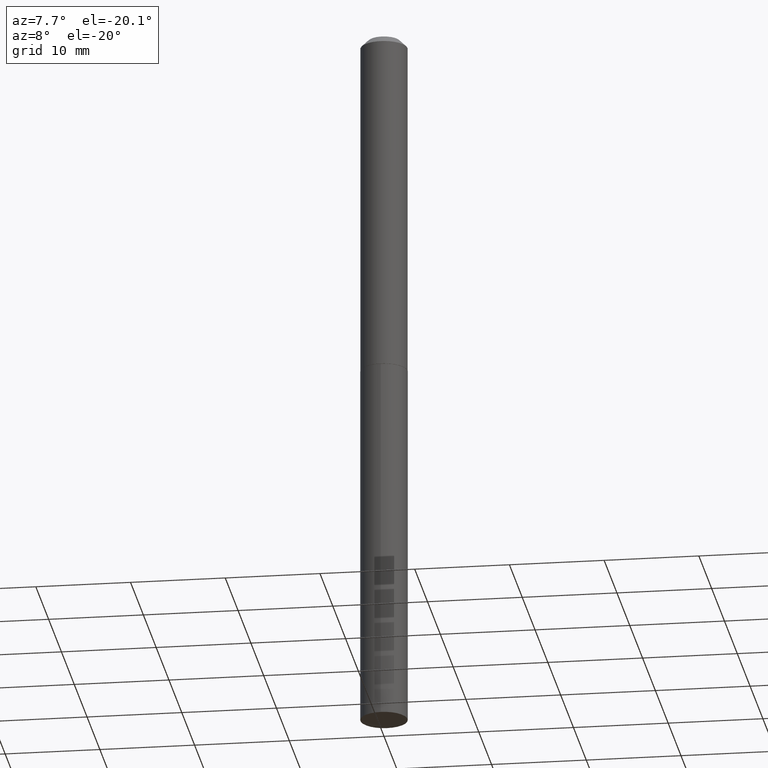
[diagram: clean part render]
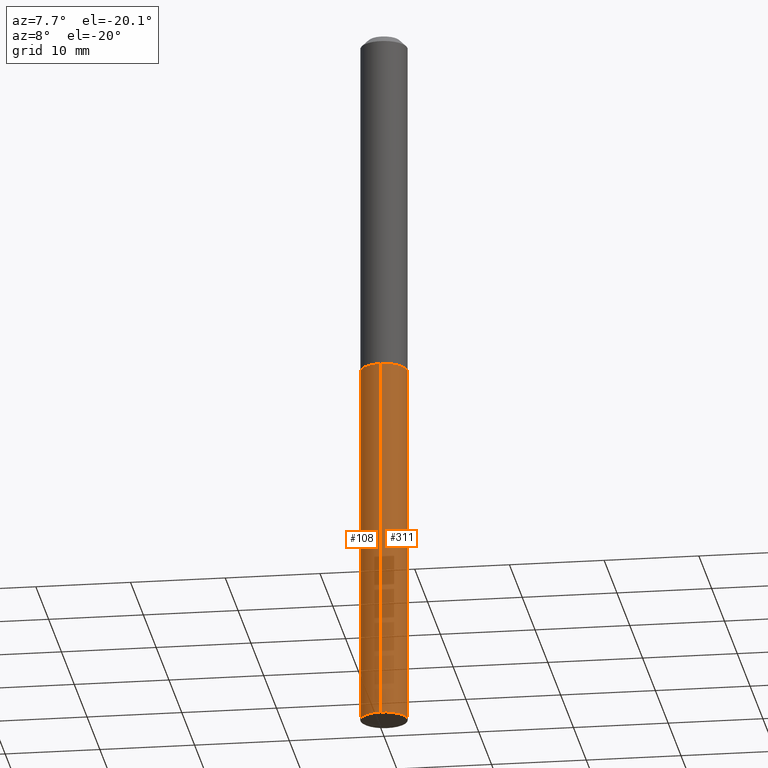
[diagram: same view with one multi-face feature highlighted, each face labeled with its STEP entity id]
A machine part, auxiliary view. The highlighted faces form ONE feature: a constant-radius fillet chain: 2 tangent blend faces with common blend radius 2.4892 mm. The faces share edges in the B-rep.
Their STEP definitions:
[1] entity #311 (Cylinder):
#1 = CARTESIAN_POINT ( 'NONE',  ( 6.963318810449705870E-16, 0.09799999999998960931, -2.973740979141750618 ) ) ;
#2 = EDGE_CURVE ( 'NONE', #343, #225, #13, .T. ) ;
#3 = DIRECTION ( 'NONE',  ( -2.445476842766525391E-29, 3.491469830001183236E-15, 1.000000000000000000 ) ) ;
#7 = CARTESIAN_POINT ( 'NONE',  ( -6.843303424132187493E-16, -0.09800000000000505529, -1.445999999999999730 ) ) ;
#13 = CIRCLE ( 'NONE', #110, 0.09800000000000000377 ) ;
#26 = EDGE_CURVE ( 'NONE', #296, #316, #251, .T. ) ;
#33 = VECTOR ( 'NONE', #221, 39.37007874015748143 ) ;
#41 = DIRECTION ( 'NONE',  ( -6.982962677686265922E-15, -1.000000000000000000, 2.787599993534962411E-15 ) ) ;
#50 = VECTOR ( 'NONE', #162, 39.37007874015748143 ) ;
#52 = ORIENTED_EDGE ( 'NONE', *, *, #2, .T. ) ;
#58 = CARTESIAN_POINT ( 'NONE',  ( 7.272203079980314152E-29, -1.038274355269707335E-14, -2.973740979141749730 ) ) ;
#68 = FACE_OUTER_BOUND ( 'NONE', #315, .T. ) ;
#92 = AXIS2_PLACEMENT_3D ( 'NONE', #185, #116, #354 ) ;
#110 = AXIS2_PLACEMENT_3D ( 'NONE', #58, #298, #263 ) ;
#116 = DIRECTION ( 'NONE',  ( -2.445476842766525391E-29, 3.491469830001183236E-15, 1.000000000000000000 ) ) ;
#140 = ORIENTED_EDGE ( 'NONE', *, *, #26, .F. ) ;
#162 = DIRECTION ( 'NONE',  ( -2.445476842766525391E-29, 3.491469830001182842E-15, 1.000000000000000000 ) ) ;
#163 = CARTESIAN_POINT ( 'NONE',  ( 3.536147893743707559E-29, -5.048682015967188692E-15, -1.446000000000000174 ) ) ;
#167 = ORIENTED_EDGE ( 'NONE', *, *, #376, .T. ) ;
#185 = CARTESIAN_POINT ( 'NONE',  ( 3.536147893743707559E-29, -5.048682015967188692E-15, -1.446000000000000174 ) ) ;
#193 = CYLINDRICAL_SURFACE ( 'NONE', #336, 0.09800000000000000377 ) ;
#199 = ORIENTED_EDGE ( 'NONE', *, *, #360, .F. ) ;
#217 = CARTESIAN_POINT ( 'NONE',  ( 6.963318810449334119E-16, 0.09799999999999495226, -1.446000000000000396 ) ) ;
#221 = DIRECTION ( 'NONE',  ( -2.445476842766525391E-29, 3.491469830001182842E-15, 1.000000000000000000 ) ) ;
#222 = LINE ( 'NONE', #253, #33 ) ;
#225 = VERTEX_POINT ( 'NONE', #1 ) ;
#251 = CIRCLE ( 'NONE', #92, 0.09800000000000000377 ) ;
#253 = CARTESIAN_POINT ( 'NONE',  ( -6.843303424132187493E-16, -0.09800000000000505529, -1.445999999999999730 ) ) ;
#263 = DIRECTION ( 'NONE',  ( -6.982962677686265922E-15, -1.000000000000000000, 5.575199987069924823E-15 ) ) ;
#296 = VERTEX_POINT ( 'NONE', #7 ) ;
#298 = DIRECTION ( 'NONE',  ( -2.445476842766525391E-29, 3.491469830001183236E-15, 1.000000000000000000 ) ) ;
#309 = LINE ( 'NONE', #217, #50 ) ;
#311 = ADVANCED_FACE ( 'NONE', ( #68 ), #193, .T. ) ;
#315 = EDGE_LOOP ( 'NONE', ( #52, #167, #140, #199 ) ) ;
#316 = VERTEX_POINT ( 'NONE', #368 ) ;
#336 = AXIS2_PLACEMENT_3D ( 'NONE', #163, #3, #41 ) ;
#343 = VERTEX_POINT ( 'NONE', #367 ) ;
#354 = DIRECTION ( 'NONE',  ( -6.982962677686265922E-15, -1.000000000000000000, 2.787599993534962411E-15 ) ) ;
#360 = EDGE_CURVE ( 'NONE', #343, #296, #222, .T. ) ;
#367 = CARTESIAN_POINT ( 'NONE',  ( -6.843303424131812784E-16, -0.09800000000001035660, -2.973740979141749285 ) ) ;
#368 = CARTESIAN_POINT ( 'NONE',  ( 6.963318810449708828E-16, 0.09799999999999493838, -1.446000000000000396 ) ) ;
#376 = EDGE_CURVE ( 'NONE', #225, #316, #309, .T. ) ;
[2] entity #108 (Cylinder):
#1 = CARTESIAN_POINT ( 'NONE',  ( 6.963318810449705870E-16, 0.09799999999998960931, -2.973740979141750618 ) ) ;
#7 = CARTESIAN_POINT ( 'NONE',  ( -6.843303424132187493E-16, -0.09800000000000505529, -1.445999999999999730 ) ) ;
#29 = CARTESIAN_POINT ( 'NONE',  ( 7.272203079980314152E-29, -1.038274355269707335E-14, -2.973740979141749730 ) ) ;
#33 = VECTOR ( 'NONE', #221, 39.37007874015748143 ) ;
#42 = EDGE_LOOP ( 'NONE', ( #385, #227, #151, #107 ) ) ;
#50 = VECTOR ( 'NONE', #162, 39.37007874015748143 ) ;
#54 = DIRECTION ( 'NONE',  ( -6.982962677686265922E-15, -1.000000000000000000, 2.787599993534962411E-15 ) ) ;
#62 = DIRECTION ( 'NONE',  ( -6.982962677686265922E-15, -1.000000000000000000, 5.575199987069924823E-15 ) ) ;
#69 = AXIS2_PLACEMENT_3D ( 'NONE', #168, #88, #158 ) ;
#88 = DIRECTION ( 'NONE',  ( -2.445476842766525391E-29, 3.491469830001183236E-15, 1.000000000000000000 ) ) ;
#95 = EDGE_CURVE ( 'NONE', #316, #296, #234, .T. ) ;
#107 = ORIENTED_EDGE ( 'NONE', *, *, #95, .F. ) ;
#108 = ADVANCED_FACE ( 'NONE', ( #114 ), #135, .T. ) ;
#111 = DIRECTION ( 'NONE',  ( -2.445476842766525391E-29, 3.491469830001183236E-15, 1.000000000000000000 ) ) ;
#114 = FACE_OUTER_BOUND ( 'NONE', #42, .T. ) ;
#131 = AXIS2_PLACEMENT_3D ( 'NONE', #377, #111, #54 ) ;
#135 = CYLINDRICAL_SURFACE ( 'NONE', #69, 0.09800000000000000377 ) ;
#138 = AXIS2_PLACEMENT_3D ( 'NONE', #29, #189, #62 ) ;
#151 = ORIENTED_EDGE ( 'NONE', *, *, #360, .T. ) ;
#158 = DIRECTION ( 'NONE',  ( -6.982962677686265922E-15, -1.000000000000000000, 2.787599993534962411E-15 ) ) ;
#162 = DIRECTION ( 'NONE',  ( -2.445476842766525391E-29, 3.491469830001182842E-15, 1.000000000000000000 ) ) ;
#168 = CARTESIAN_POINT ( 'NONE',  ( 3.536147893743707559E-29, -5.048682015967188692E-15, -1.446000000000000174 ) ) ;
#171 = EDGE_CURVE ( 'NONE', #225, #343, #192, .T. ) ;
#189 = DIRECTION ( 'NONE',  ( -2.445476842766525391E-29, 3.491469830001183236E-15, 1.000000000000000000 ) ) ;
#192 = CIRCLE ( 'NONE', #138, 0.09800000000000000377 ) ;
#217 = CARTESIAN_POINT ( 'NONE',  ( 6.963318810449334119E-16, 0.09799999999999495226, -1.446000000000000396 ) ) ;
#221 = DIRECTION ( 'NONE',  ( -2.445476842766525391E-29, 3.491469830001182842E-15, 1.000000000000000000 ) ) ;
#222 = LINE ( 'NONE', #253, #33 ) ;
#225 = VERTEX_POINT ( 'NONE', #1 ) ;
#227 = ORIENTED_EDGE ( 'NONE', *, *, #171, .T. ) ;
#234 = CIRCLE ( 'NONE', #131, 0.09800000000000000377 ) ;
#253 = CARTESIAN_POINT ( 'NONE',  ( -6.843303424132187493E-16, -0.09800000000000505529, -1.445999999999999730 ) ) ;
#296 = VERTEX_POINT ( 'NONE', #7 ) ;
#309 = LINE ( 'NONE', #217, #50 ) ;
#316 = VERTEX_POINT ( 'NONE', #368 ) ;
#343 = VERTEX_POINT ( 'NONE', #367 ) ;
#360 = EDGE_CURVE ( 'NONE', #343, #296, #222, .T. ) ;
#367 = CARTESIAN_POINT ( 'NONE',  ( -6.843303424131812784E-16, -0.09800000000001035660, -2.973740979141749285 ) ) ;
#368 = CARTESIAN_POINT ( 'NONE',  ( 6.963318810449708828E-16, 0.09799999999999493838, -1.446000000000000396 ) ) ;
#376 = EDGE_CURVE ( 'NONE', #225, #316, #309, .T. ) ;
#377 = CARTESIAN_POINT ( 'NONE',  ( 3.536147893743707559E-29, -5.048682015967188692E-15, -1.446000000000000174 ) ) ;
#385 = ORIENTED_EDGE ( 'NONE', *, *, #376, .F. ) ;